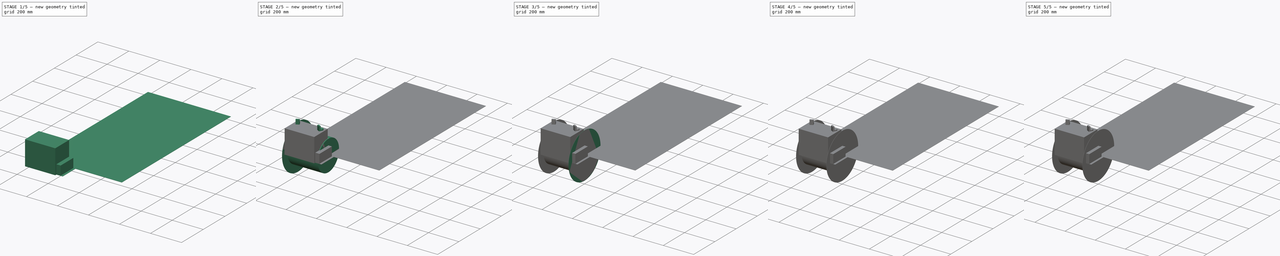
[diagram: build sequence overview — one tinted view per stage of 5, left to right]
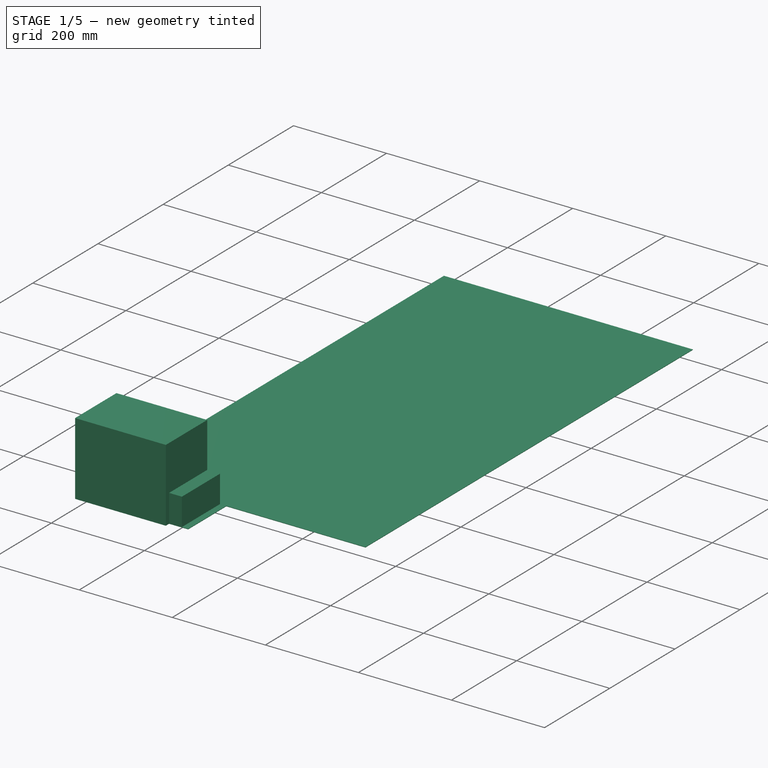
[diagram: stage 1 of 5 — iso view after this stage's code; geometry added in this stage tinted green]
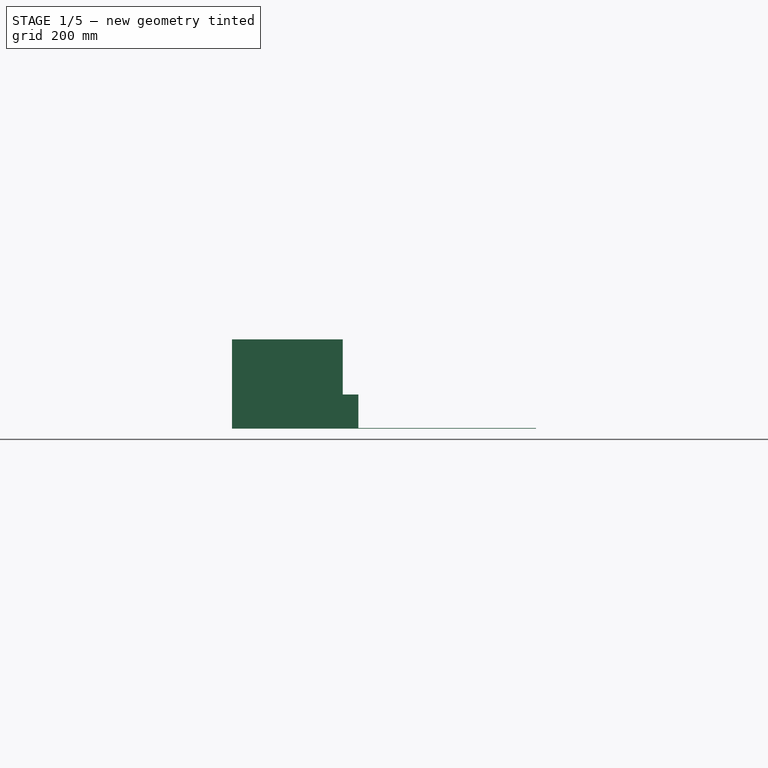
[diagram: stage 1 of 5 — front view after this stage's code; geometry added in this stage tinted green]
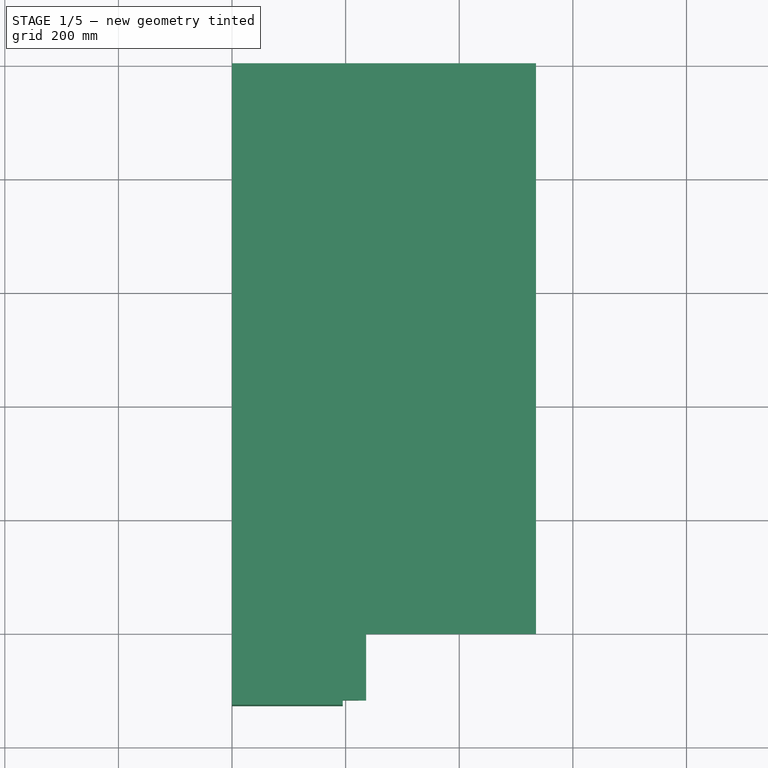
[diagram: stage 1 of 5 — top view after this stage's code; geometry added in this stage tinted green]
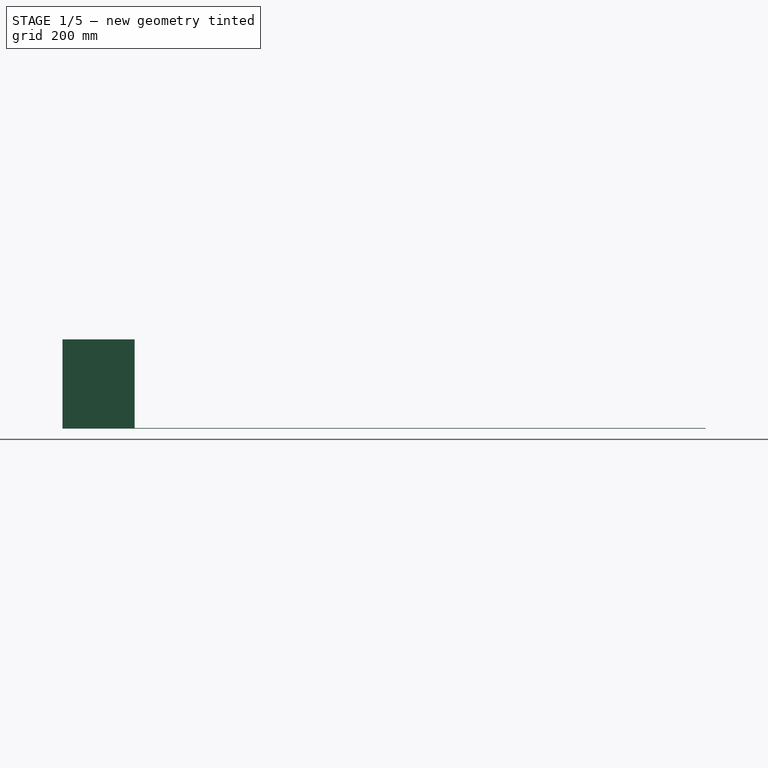
[diagram: stage 1 of 5 — right view after this stage's code; geometry added in this stage tinted green]
FCSTD DOCUMENT  (FreeCAD 0.19R20943 (Git))
Label: WinchCad
License: All rights reserved
LicenseURL: http://en.wikipedia.org/wiki/All_rights_reserved
objects: Sketcher::SketchObject×20, PartDesign::Pad×16, PartDesign::Body×9, Part::Feature×5, PartDesign::Mirrored×2, Image::ImagePlane×1, PartDesign::Pocket×1, Part::FeaturePython×1
note: 71 computed .brp shape members not serialized (recipe doc carries the construction recipe); baked Part::Feature solids carry a one-line shape summary decoded from their .brp

FEATURE [PartDesign::Body] Body004  label="Rouleau2"
  Group = -> [Sketch012,Pad009,Sketch013,Pad011,Sketch014,Pad010]
  Origin = -> Origin004
  Placement = pos=(219,-225,160) rot=(0,0,1;0rad)
  Tip = -> Pad010
FEATURE [Sketcher::SketchObject] Sketch016  label="base"
  MapMode = 5
  Support = -> [XY_Plane005]
  sketch-geometry (4):
    g0: LineSegment StartX=0 StartY=0 StartZ=0 EndX=195 EndY=0 EndZ=0
    g1: LineSegment StartX=195 StartY=0 StartZ=0 EndX=195 EndY=-127 EndZ=0
    g2: LineSegment StartX=195 StartY=-127 StartZ=0 EndX=0 EndY=-127 EndZ=0
    g3: LineSegment StartX=0 StartY=-127 StartZ=0 EndX=0 EndY=0 EndZ=0
  constraints (11):
    c: Coincident(g0,g1)
    c: Coincident(g1,g2)
    c: Coincident(g2,g3)
    c: Coincident(g3,g0)
    c: Horizontal(g0)
    c: Horizontal(g2)
    c: Vertical(g1)
    c: Vertical(g3)
    c: Coincident(g0,g-1)
    c: DistanceX(g0,g0) = 195
    c: DistanceY(g3,g3) = 127
FEATURE [PartDesign::Pad] Pad012
  AllowMultiFace = false
  Length = 157
  Length2 = 100
  Profile = -> Sketch016
  Type = 0
FEATURE [PartDesign::Body] Body005  label="Battery003"
  Group = -> [Sketch016,Pad012,Sketch017,Pad013,Sketch018,Pad014]
  Origin = -> Origin005
  Placement = pos=(0,485,0) rot=(0,0,1;0rad)
  Tip = -> Pad014
FEATURE [Part::Feature] Body005001  label="Battery011"
  Placement = pos=(225,214,0) rot=(0,0,1;0rad)
  shape: bbox 195 x 127 x 186.5 mm, 26 faces (baked)
FEATURE [Part::Feature] Body005002  label="Battery002"
  Placement = pos=(0,350,0) rot=(0,0,1;0rad)
  shape: bbox 195 x 127 x 186.5 mm, 26 faces (baked)
FEATURE [Part::Feature] Body005003  label="Battery001"
  Placement = pos=(0,215,0) rot=(0,0,1;0rad)
  shape: bbox 195 x 127 x 186.5 mm, 26 faces (baked)
FEATURE [Part::Feature] Body005004  label="Battery012"
  Placement = pos=(225,350,0) rot=(0,0,1;0rad)
  shape: bbox 195 x 127 x 186.5 mm, 26 faces (baked)
FEATURE [Part::Feature] Body005005  label="Battery013"
  Placement = pos=(225,485,0) rot=(0,0,1;0rad)
  shape: bbox 195 x 127 x 186.5 mm, 26 faces (baked)
FEATURE [Sketcher::SketchObject] Sketch019
  MapMode = 5
  Support = -> [XY_Plane006]
  sketch-geometry (4):
    g0: LineSegment StartX=0 StartY=0 StartZ=0 EndX=535 EndY=0 EndZ=0
    g1: LineSegment StartX=535 StartY=0 StartZ=0 EndX=535 EndY=1005 EndZ=0
    g2: LineSegment StartX=535 StartY=1005 StartZ=0 EndX=0 EndY=1005 EndZ=0
    g3: LineSegment StartX=0 StartY=1005 StartZ=0 EndX=0 EndY=0 EndZ=0
  constraints (11):
    c: Coincident(g0,g1)
    c: Coincident(g1,g2)
    c: Coincident(g2,g3)
    c: Coincident(g3,g0)
    c: Horizontal(g0)
    c: Horizontal(g2)
    c: Vertical(g1)
    c: Vertical(g3)
    c: Coincident(g0,g-1)
    c: DistanceY(g3,g3) = 1005
    c: DistanceX(g0,g0) = 535
FEATURE [PartDesign::Pad] Pad015
  AllowMultiFace = false
  Length = 1
  Length2 = 100
  Profile = -> Sketch019
  Type = 0
FEATURE [Sketcher::SketchObject] Sketch020
  MapMode = 5
  Support = -> [XY_Plane006]
FEATURE [PartDesign::Body] Body005006  label="Chassi"
  Group = -> [Sketch019,Pad015,Sketch020]
  Origin = -> Origin006
  Placement = pos=(-60,-445,-1) rot=(0,0,1;0rad)
  Tip = -> Pad015
FEATURE [Sketcher::SketchObject] Sketch021  label="Support"
  MapMode = 5
  Support = -> [XY_Plane007]
  sketch-geometry (4):
    g0: LineSegment StartX=0 StartY=0 StartZ=0 EndX=236 EndY=0 EndZ=0
    g1: LineSegment StartX=236 StartY=0 StartZ=0 EndX=236 EndY=-117 EndZ=0
    g2: LineSegment StartX=236 StartY=-117 StartZ=0 EndX=0 EndY=-117 EndZ=0
    g3: LineSegment StartX=0 StartY=-117 StartZ=0 EndX=0 EndY=0 EndZ=0
  constraints (11):
    c: Coincident(g0,g1)
    c: Coincident(g1,g2)
    c: Coincident(g2,g3)
    c: Coincident(g3,g0)
    c: Horizontal(g0)
    c: Horizontal(g2)
    c: Vertical(g1)
    c: Vertical(g3)
    c: Coincident(g0,g-1)
    c: DistanceX(g0,g0) = 236
    c: DistanceY(g3,g3) = 117
FEATURE [PartDesign::Pad] Pad016
  AllowMultiFace = false
  Length = 1
  Length2 = 100
  Profile = -> Sketch021
  Type = 0
FEATURE [Sketcher::SketchObject] Sketch022
  ExternalGeometry = -> [Pad016]
  MapMode = 5
  Placement = pos=(0,0,1) rot=(0,0,1;0rad)
  Support = -> [Pad016]
  sketch-geometry (4):
    g0: LineSegment StartX=13.5 StartY=0 StartZ=0 EndX=222.5 EndY=0 EndZ=0
    g1: LineSegment StartX=222.5 StartY=0 StartZ=0 EndX=222.5 EndY=-117 EndZ=0
    g2: LineSegment StartX=222.5 StartY=-117 StartZ=0 EndX=13.5 EndY=-117 EndZ=0
    g3: LineSegment StartX=13.5 StartY=-117 StartZ=0 EndX=13.5 EndY=0 EndZ=0
  constraints (12):
    c: Coincident(g0,g1)
    c: Coincident(g1,g2)
    c: Coincident(g2,g3)
    c: Coincident(g3,g0)
    c: Horizontal(g0)
    c: Horizontal(g2)
    c: Vertical(g1)
    c: Vertical(g3)
    c: PointOnObject(g0,g-3)
    c: PointOnObject(g1,g-4)
    c: DistanceX(g-1,g0) = 13.5
    c: DistanceX(g0,g0) = 209
FEATURE [PartDesign::Pad] Pad017
  AllowMultiFace = false
  BaseFeature = -> Pad016
  Length = 59
  Length2 = 100
  Profile = -> Sketch022
  Type = 0
FEATURE [PartDesign::Body] Body005007  label="Controler"
  Group = -> [Sketch021,Pad016,Sketch022,Pad017]
  Origin = -> Origin007
  Placement = pos=(198,55,0) rot=(0,0,1;0rad)
  Tip = -> Pad017
FEATURE [Sketcher::SketchObject] Sketch023
  MapMode = 5
  Placement = pos=(0,0,0) rot=(0.57735,0.57735,0.57735;2.0944rad)
  Support = -> [YZ_Plane008]
  sketch-geometry (8):
    g0: LineSegment StartX=-149.434 StartY=-160 StartZ=0 EndX=-73.5097 EndY=-28.4945 EndZ=0
    g1: LineSegment StartX=73.5097 StartY=-28.4945 StartZ=0 EndX=149.434 EndY=-160 EndZ=0
    g2: LineSegment StartX=-149.434 StartY=-160 StartZ=0 EndX=-106.191 EndY=-160 EndZ=0
    g3: LineSegment StartX=-106.191 StartY=-160 StartZ=0 EndX=-44.7002 EndY=-53.4945 EndZ=0
    g4: LineSegment StartX=-44.7002 StartY=-53.4945 StartZ=0 EndX=44.7002 EndY=-53.4945 EndZ=0
    g5: LineSegment StartX=44.7002 StartY=-53.4945 StartZ=0 EndX=106.191 EndY=-160 EndZ=0
    g6: LineSegment StartX=106.191 StartY=-160 StartZ=0 EndX=149.434 EndY=-160 EndZ=0
    g7: LineSegment StartX=-73.5097 StartY=-28.4945 StartZ=0 EndX=73.5097 EndY=-28.4945 EndZ=0
  constraints (18):
    c: Coincident(g2,g0)
    c: Horizontal(g2)
    c: Coincident(g3,g2)
    c: Coincident(g4,g3)
    c: Coincident(g5,g4)
    c: Coincident(g6,g1)
    c: Horizontal(g6)
    c: DistanceY(g4,g1) = 25
    c: Parallel(g0,g3)
    c: Parallel(g5,g1)
    c: Coincident(g5,g6)
    c: Symmetric(g2,g5,g-2)
    c: DistanceY(g2,g-1) = 160
    c: Coincident(g7,g0)
    c: Coincident(g7,g1)
    c: Symmetric(g0,g1,g-2)
    c: Symmetric(g3,g4,g-2)
    c: Angle(g3,g4) = 2.0944
FEATURE [PartDesign::Body] Body005008
  Group = -> [Sketch023]
  Origin = -> Origin008
  Placement = pos=(0,-225,160) rot=(0,0,1;0rad)
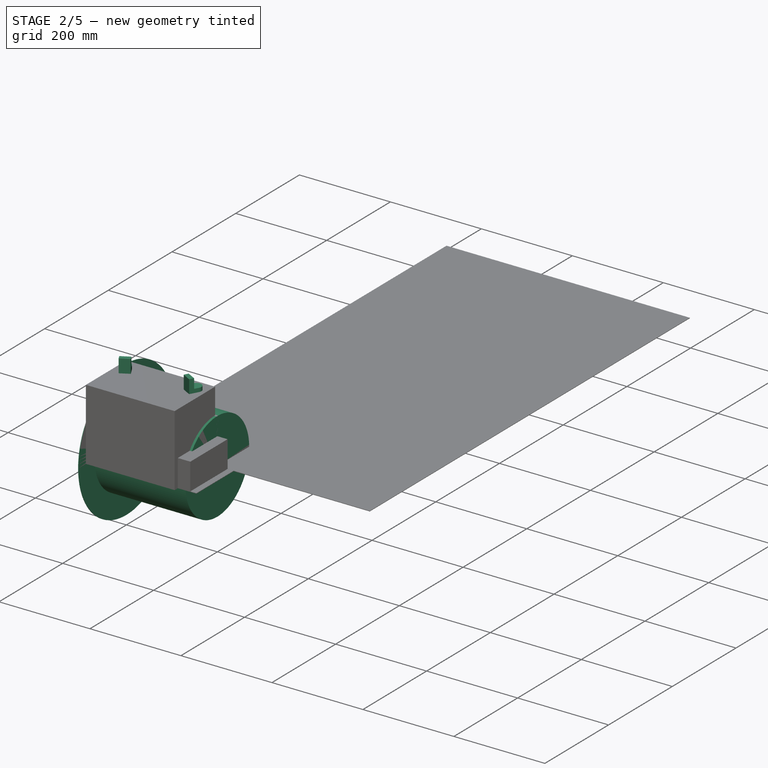
[diagram: stage 2 of 5 — iso view after this stage's code; geometry added in this stage tinted green]
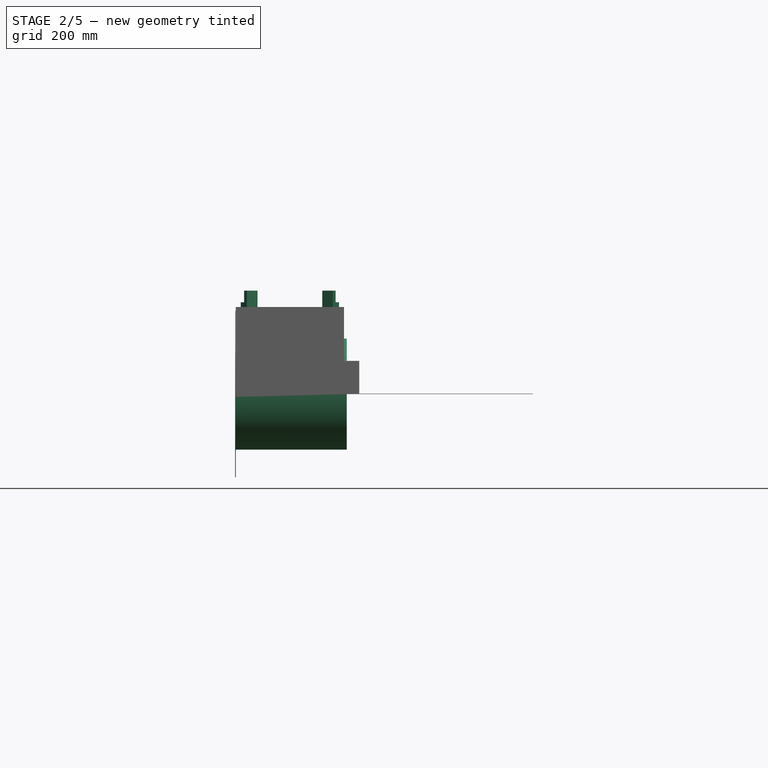
[diagram: stage 2 of 5 — front view after this stage's code; geometry added in this stage tinted green]
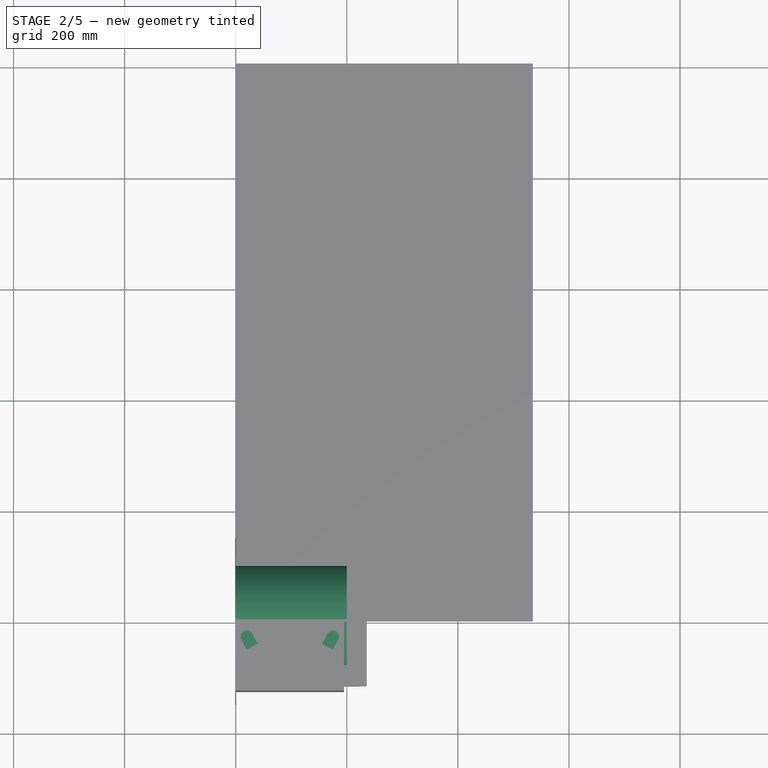
[diagram: stage 2 of 5 — top view after this stage's code; geometry added in this stage tinted green]
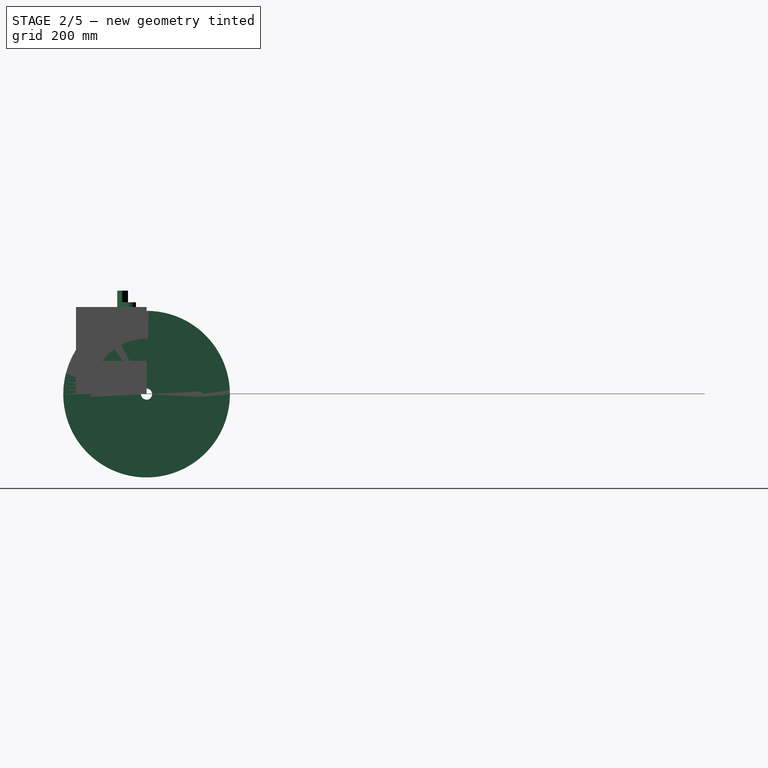
[diagram: stage 2 of 5 — right view after this stage's code; geometry added in this stage tinted green]
FEATURE [PartDesign::Body] Body002  label="Rouleau1"
  Group = -> [Sketch005,Pad003,Sketch010,Pad007,Sketch011,Pad008]
  Origin = -> Origin002
  Placement = pos=(0,-225,160) rot=(0,0,1;0rad)
  Tip = -> Pad008
FEATURE [Sketcher::SketchObject] Sketch012
  MapMode = 5
  Placement = pos=(0,0,0) rot=(0.57735,0.57735,0.57735;2.0944rad)
  Support = -> [YZ_Plane004]
  sketch-geometry (2):
    g0: Circle CenterX=0 CenterY=0 CenterZ=0 NormalX=0 NormalY=0 NormalZ=1 AngleXU=0 Radius=100
    g1: Circle CenterX=0 CenterY=0 CenterZ=0 NormalX=0 NormalY=0 NormalZ=1 AngleXU=0 Radius=10
  constraints (4):
    c: Coincident(g0,g-1)
    c: Radius(g0) = 100
    c: Coincident(g1,g0)
    c: Radius(g1) = 10
FEATURE [PartDesign::Pad] Pad009
  AllowMultiFace = false
  Length = 200
  Length2 = 100
  Offset = 100
  Placement = pos=(0,0,0) rot=(0.57735,0.57735,0.57735;2.0944rad)
  Profile = -> Sketch012
  Type = 0
FEATURE [Sketcher::SketchObject] Sketch013
  ExternalGeometry = -> [Pad009]
  MapMode = 5
  Placement = pos=(0,0,0) rot=(0.57735,0.57735,-0.57735;4.18879rad)
  Support = -> [Pad009]
  sketch-geometry (2):
    g0: Circle CenterX=0 CenterY=0 CenterZ=0 NormalX=0 NormalY=0 NormalZ=1 AngleXU=0 Radius=10
    g1: Circle CenterX=0 CenterY=0 CenterZ=0 NormalX=0 NormalY=0 NormalZ=1 AngleXU=0 Radius=150
  constraints (4):
    c: Coincident(g0,g-1)
    c: Tangent(g0,g-3)
    c: Coincident(g1,g0)
    c: Radius(g1) = 150
FEATURE [PartDesign::Pad] Pad011
  AllowMultiFace = false
  BaseFeature = -> Pad009
  Length = 1
  Length2 = 100
  Placement = pos=(0,0,0) rot=(0.57735,0.57735,0.57735;2.0944rad)
  Profile = -> Sketch013
  Type = 0
FEATURE [Sketcher::SketchObject] Sketch017
  ExternalGeometry = -> [Pad012]
  MapMode = 5
  Placement = pos=(0,0,157) rot=(0,0,1;0rad)
  Support = -> [Pad012]
  sketch-geometry (8):
    g0: ArcOfCircle CenterX=20 CenterY=-30 CenterZ=0 NormalX=0 NormalY=0 NormalZ=1 AngleXU=0 Radius=11 StartAngle=0.502843 EndAngle=3.64444
    g1: LineSegment StartX=10.3616 StartY=-35.3011 StartZ=0 EndX=20 EndY=-52.8254 EndZ=0
    g2: LineSegment StartX=20 StartY=-52.8254 StartZ=0 EndX=39.2767 EndY=-42.2232 EndZ=0
    g3: LineSegment StartX=39.2767 StartY=-42.2232 StartZ=0 EndX=29.6384 EndY=-24.6989 EndZ=0
    g4: LineSegment StartX=175 StartY=-52.8254 StartZ=0 EndX=184.638 EndY=-35.3011 EndZ=0
    g5: LineSegment StartX=165.362 StartY=-24.6989 StartZ=0 EndX=155.723 EndY=-42.2232 EndZ=0
    g6: ArcOfCircle CenterX=175 CenterY=-30 CenterZ=0 NormalX=0 NormalY=0 NormalZ=1 AngleXU=0 Radius=11 StartAngle=5.78034 EndAngle=8.92193
    g7: LineSegment StartX=155.723 StartY=-42.2232 StartZ=0 EndX=175 EndY=-52.8254 EndZ=0
  constraints (26):
    c: Coincident(g1,g0)
    c: Coincident(g2,g1)
    c: Coincident(g3,g2)
    c: Coincident(g3,g0)
    c: DistanceX(g-1,g0) = 20
    c: DistanceY(g0,g-1) = 30
    c: Perpendicular(g2,g1)
    c: Perpendicular(g2,g3)
    c: Distance(g3) = 20
    c: Distance(g1) = 20
    c: Distance(g2) = 22
    c: Symmetric(g0,g0,g0)
    c: DistanceX(g-1,g1) = 20
    c: Coincident(g5,g6)
    c: Coincident(g7,g5)
    c: Coincident(g4,g7)
    c: Coincident(g4,g6)
    c: Perpendicular(g7,g5)
    c: Perpendicular(g7,g4)
    c: Distance(g4) = 20
    c: Distance(g5) = 20
    c: Distance(g7) = 22
    c: Symmetric(g6,g6,g6)
    c: DistanceX(g6,g-4) = 20
    c: DistanceY(g6,g-4) = 30
    c: DistanceX(g4,g-4) = 20
FEATURE [PartDesign::Pad] Pad013
  AllowMultiFace = false
  BaseFeature = -> Pad012
  Length = 8.5
  Length2 = 100
  Profile = -> Sketch017
  Type = 0
FEATURE [Sketcher::SketchObject] Sketch018
  ExternalGeometry = -> [Pad013]
  MapMode = 5
  Placement = pos=(0,0,165.5) rot=(0,0,1;0rad)
  Support = -> [Pad013]
  sketch-geometry (8):
    g0: LineSegment StartX=20 StartY=-52.8254 StartZ=0 EndX=39.2767 EndY=-42.2232 EndZ=0
    g1: LineSegment StartX=34.4576 StartY=-33.4611 StartZ=0 EndX=15.1808 EndY=-44.0633 EndZ=0
    g2: LineSegment StartX=34.4576 StartY=-33.4611 StartZ=0 EndX=39.2767 EndY=-42.2232 EndZ=0
    g3: LineSegment StartX=15.1808 StartY=-44.0633 StartZ=0 EndX=20 EndY=-52.8254 EndZ=0
    g4: LineSegment StartX=155.723 StartY=-42.2232 StartZ=0 EndX=175 EndY=-52.8254 EndZ=0
    g5: LineSegment StartX=175 StartY=-52.8254 StartZ=0 EndX=179.819 EndY=-44.0633 EndZ=0
    g6: LineSegment StartX=179.819 StartY=-44.0633 StartZ=0 EndX=160.542 EndY=-33.4611 EndZ=0
    g7: LineSegment StartX=160.542 StartY=-33.4611 StartZ=0 EndX=155.723 EndY=-42.2232 EndZ=0
  constraints (20):
    c: Coincident(g0,g-3)
    c: Coincident(g0,g-3)
    c: Coincident(g2,g1)
    c: Coincident(g2,g0)
    c: Coincident(g3,g1)
    c: Coincident(g3,g0)
    c: Perpendicular(g0,g2)
    c: Perpendicular(g0,g3)
    c: Perpendicular(g1,g3)
    c: Distance(g2) = 10
    c: Coincident(g4,g-4)
    c: Coincident(g4,g-4)
    c: Coincident(g5,g4)
    c: Coincident(g7,g4)
    c: Perpendicular(g4,g7)
    c: Perpendicular(g5,g4)
    c: Perpendicular(g5,g6)
    c: Coincident(g6,g7)
    c: Coincident(g5,g6)
    c: Horizontal(g1,g6)
FEATURE [PartDesign::Pad] Pad014
  AllowMultiFace = false
  BaseFeature = -> Pad013
  Length = 21
  Length2 = 100
  Profile = -> Sketch018
  Type = 0
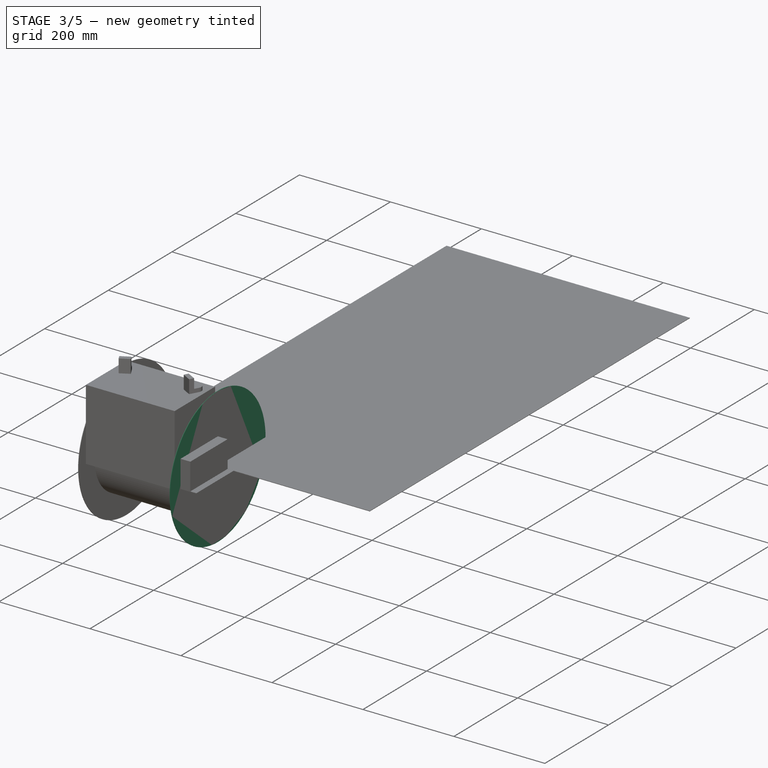
[diagram: stage 3 of 5 — iso view after this stage's code; geometry added in this stage tinted green]
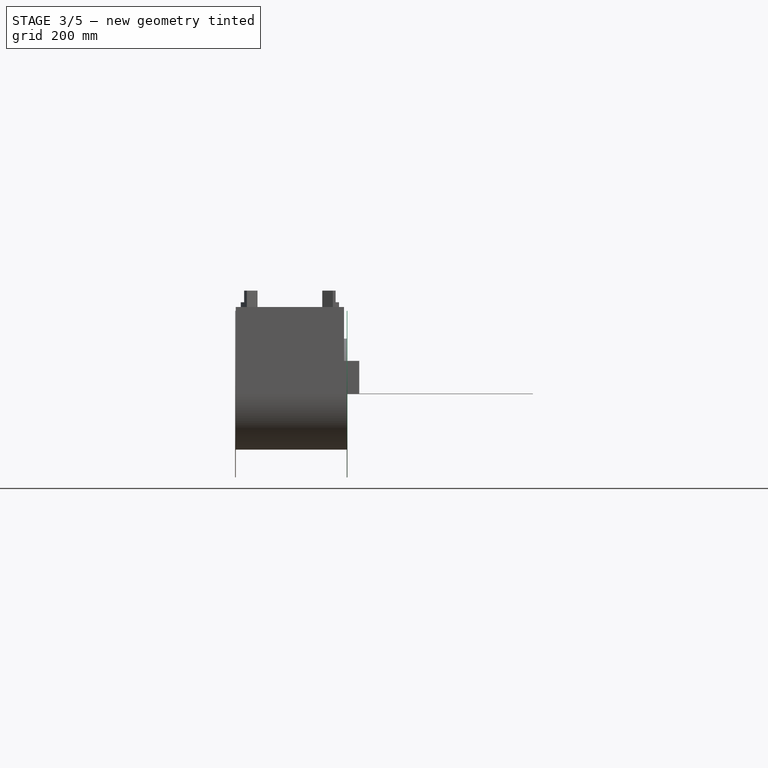
[diagram: stage 3 of 5 — front view after this stage's code; geometry added in this stage tinted green]
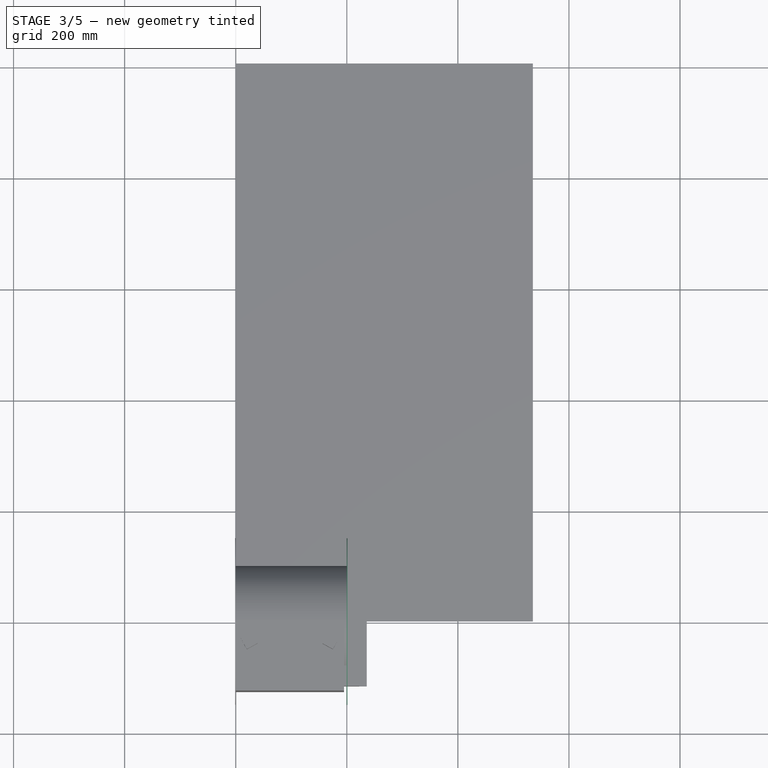
[diagram: stage 3 of 5 — top view after this stage's code; geometry added in this stage tinted green]
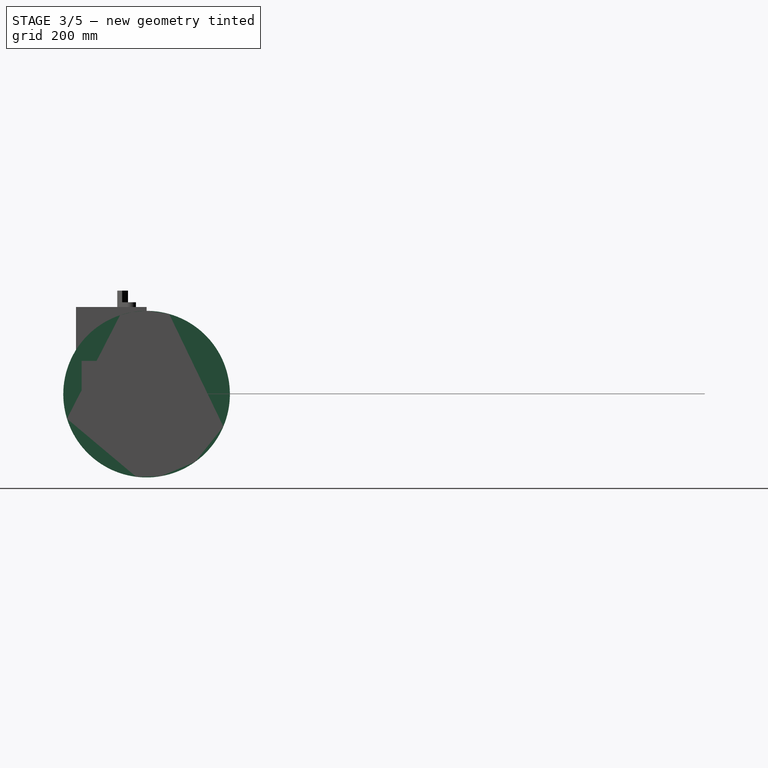
[diagram: stage 3 of 5 — right view after this stage's code; geometry added in this stage tinted green]
FEATURE [Sketcher::SketchObject] Sketch005
  MapMode = 5
  Placement = pos=(0,0,0) rot=(0.57735,0.57735,0.57735;2.0944rad)
  Support = -> [YZ_Plane002]
  sketch-geometry (2):
    g0: Circle CenterX=0 CenterY=0 CenterZ=0 NormalX=0 NormalY=0 NormalZ=1 AngleXU=0 Radius=100
    g1: Circle CenterX=0 CenterY=0 CenterZ=0 NormalX=0 NormalY=0 NormalZ=1 AngleXU=0 Radius=10
  constraints (4):
    c: Coincident(g0,g-1)
    c: Radius(g0) = 100
    c: Coincident(g1,g0)
    c: Radius(g1) = 10
FEATURE [PartDesign::Pad] Pad003
  AllowMultiFace = false
  Length = 200
  Length2 = 100
  Offset = 100
  Placement = pos=(0,0,0) rot=(0.57735,0.57735,0.57735;2.0944rad)
  Profile = -> Sketch005
  Type = 0
FEATURE [PartDesign::Body] Body003  label="Pignon"
  Group = -> [Sketch009,Pad006]
  Origin = -> Origin003
  Placement = pos=(-13,-225,160) rot=(0,0,1;0rad)
  Tip = -> Pad006
FEATURE [Sketcher::SketchObject] Sketch010
  ExternalGeometry = -> [Pad003]
  MapMode = 5
  Placement = pos=(0,0,0) rot=(0.57735,0.57735,-0.57735;4.18879rad)
  Support = -> [Pad003]
  sketch-geometry (2):
    g0: Circle CenterX=0 CenterY=0 CenterZ=0 NormalX=0 NormalY=0 NormalZ=1 AngleXU=0 Radius=10
    g1: Circle CenterX=0 CenterY=0 CenterZ=0 NormalX=0 NormalY=0 NormalZ=1 AngleXU=0 Radius=150
  constraints (4):
    c: Coincident(g0,g-1)
    c: Tangent(g0,g-3)
    c: Coincident(g1,g0)
    c: Radius(g1) = 150
FEATURE [PartDesign::Pad] Pad007
  AllowMultiFace = false
  BaseFeature = -> Pad003
  Length = 1
  Length2 = 100
  Placement = pos=(0,0,0) rot=(0.57735,0.57735,0.57735;2.0944rad)
  Profile = -> Sketch010
  Type = 0
FEATURE [Sketcher::SketchObject] Sketch011
  ExternalGeometry = -> [Pad007]
  MapMode = 5
  Placement = pos=(200,-4.4e-14,4.4e-14) rot=(0.57735,0.57735,0.57735;2.0944rad)
  Support = -> [Pad007]
  sketch-geometry (1):
    g0: Circle CenterX=0 CenterY=0 CenterZ=0 NormalX=0 NormalY=0 NormalZ=1 AngleXU=0 Radius=150
  constraints (2):
    c: Coincident(g0,g-1)
    c: Tangent(g0,g-4)
FEATURE [PartDesign::Pad] Pad008
  AllowMultiFace = false
  BaseFeature = -> Pad007
  Length = 1
  Length2 = 100
  Placement = pos=(0,0,0) rot=(0.57735,0.57735,0.57735;2.0944rad)
  Profile = -> Sketch011
  Type = 0
FEATURE [Sketcher::SketchObject] Sketch014
  ExternalGeometry = -> [Pad011]
  MapMode = 5
  Placement = pos=(200,-4.4e-14,4.4e-14) rot=(0.57735,0.57735,0.57735;2.0944rad)
  Support = -> [Pad011]
  sketch-geometry (1):
    g0: Circle CenterX=0 CenterY=0 CenterZ=0 NormalX=0 NormalY=0 NormalZ=1 AngleXU=0 Radius=150
  constraints (2):
    c: Coincident(g0,g-1)
    c: Tangent(g0,g-4)
FEATURE [PartDesign::Pad] Pad010
  AllowMultiFace = false
  BaseFeature = -> Pad011
  Length = 1
  Length2 = 100
  Placement = pos=(0,0,0) rot=(0.57735,0.57735,0.57735;2.0944rad)
  Profile = -> Sketch014
  Type = 0
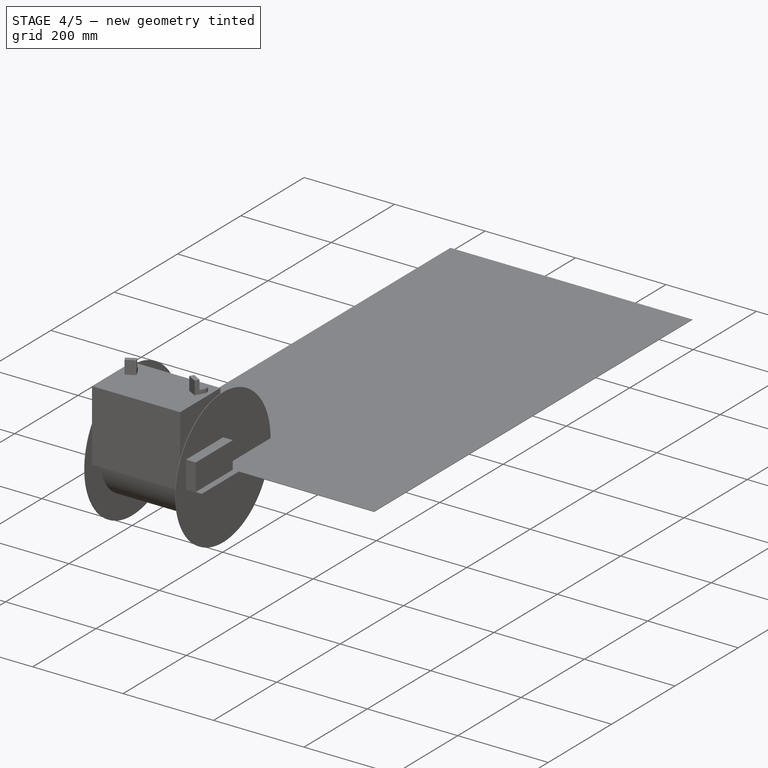
[diagram: stage 4 of 5 — iso view after this stage's code; geometry added in this stage tinted green]
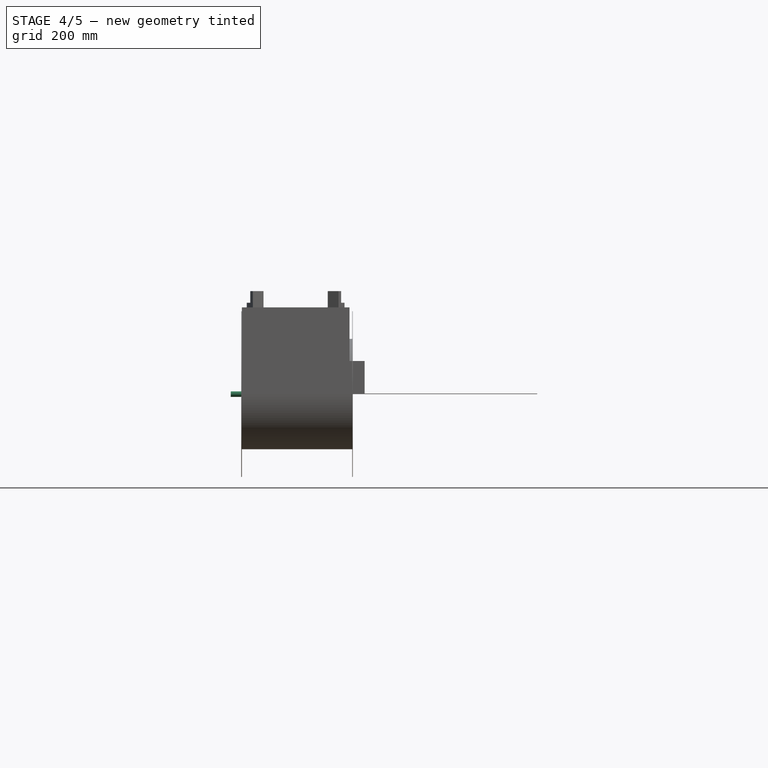
[diagram: stage 4 of 5 — front view after this stage's code; geometry added in this stage tinted green]
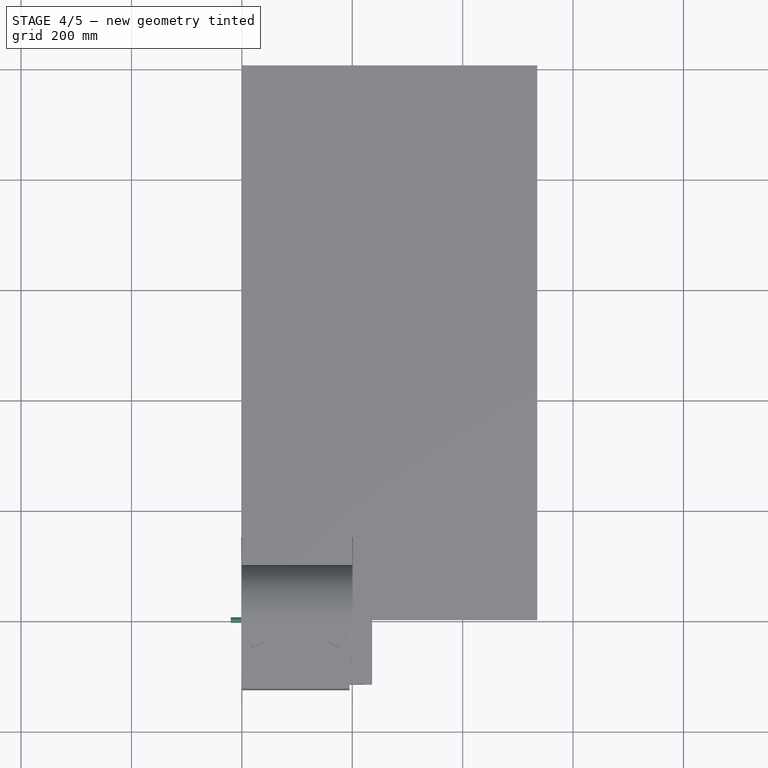
[diagram: stage 4 of 5 — top view after this stage's code; geometry added in this stage tinted green]
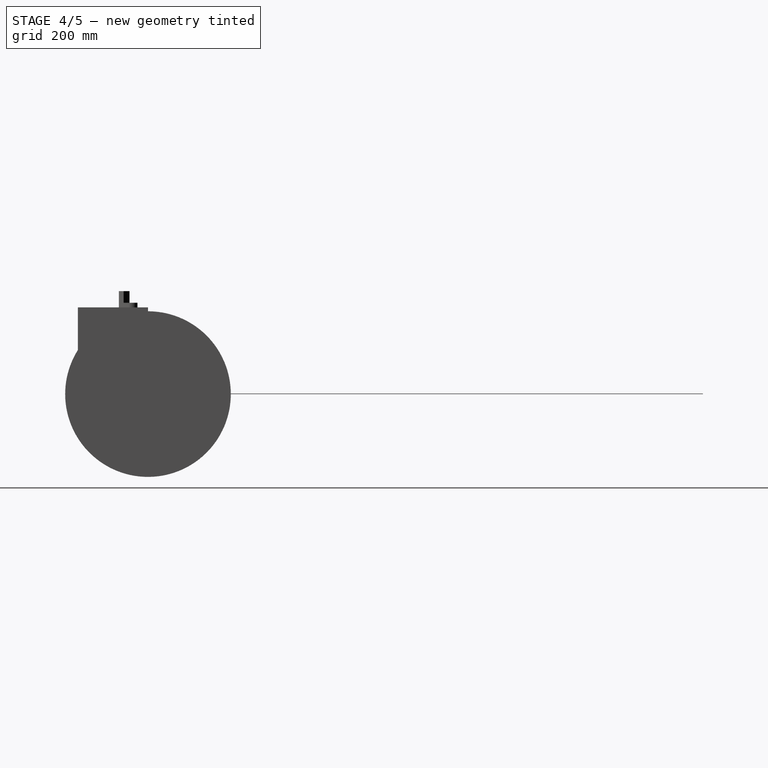
[diagram: stage 4 of 5 — right view after this stage's code; geometry added in this stage tinted green]
FEATURE [Sketcher::SketchObject] Sketch  label="BodyMotor"
  MapMode = 5
  Placement = pos=(0,0,0) rot=(0.57735,0.57735,0.57735;2.0944rad)
  Support = -> [YZ_Plane]
  sketch-geometry (1):
    g0: Circle CenterX=0 CenterY=0 CenterZ=0 NormalX=0 NormalY=0 NormalZ=1 AngleXU=0 Radius=53.5
  constraints (2):
    c: Coincident(g0,g-1)
    c: Radius(g0) = 53.5
FEATURE [PartDesign::Pad] Pad
  AllowMultiFace = false
  Length = 134
  Length2 = 100
  Placement = pos=(0,0,0) rot=(0.57735,0.57735,0.57735;2.0944rad)
  Profile = -> Sketch
  Type = 0
FEATURE [Sketcher::SketchObject] Sketch001  label="FootMotor"
  MapMode = 5
  Placement = pos=(0,0,0) rot=(0.57735,0.57735,0.57735;2.0944rad)
  Support = -> [YZ_Plane001]
  sketch-geometry (8):
    g0: ArcOfCircle CenterX=0 CenterY=0 CenterZ=0 NormalX=0 NormalY=0 NormalZ=1 AngleXU=0 Radius=53.5 StartAngle=4.19418 EndAngle=4.71239
    g1: ArcOfCircle CenterX=0 CenterY=0 CenterZ=0 NormalX=0 NormalY=0 NormalZ=1 AngleXU=0 Radius=57.5 StartAngle=4.23341 EndAngle=4.71239
    g2: LineSegment StartX=-26.5 StartY=-46.4758 StartZ=0 EndX=-37 EndY=-53 EndZ=0
    g3: LineSegment StartX=-26.5 StartY=-51.0294 StartZ=0 EndX=-37 EndY=-57 EndZ=0
    g4: LineSegment StartX=-37 StartY=-57 StartZ=0 EndX=-60 EndY=-57 EndZ=0
    g5: LineSegment StartX=-60 StartY=-57 StartZ=0 EndX=-60 EndY=-53 EndZ=0
    g6: LineSegment StartX=-60 StartY=-53 StartZ=0 EndX=-37 EndY=-53 EndZ=0
    g7: LineSegment StartX=-9.8e-15 StartY=-53.5 StartZ=0 EndX=-9.8e-15 EndY=-57.5 EndZ=0
  constraints (24):
    c: Coincident(g0,g-1)
    c: Coincident(g1,g0)
    c: Coincident(g2,g0)
    c: Coincident(g3,g1)
    c: Coincident(g4,g3)
    c: Coincident(g5,g4)
    c: Vertical(g5)
    c: Coincident(g6,g5)
    c: Horizontal(g6)
    c: Coincident(g6,g2)
    c: Horizontal(g4)
    c: DistanceY(g5,g5) = 4
    c: DistanceX(g4,g4) = 23
    c: Vertical(g2,g3)
    c: DistanceX(g4,g-1) = 60
    c: Vertical(g1,g0)
    c: DistanceY(g4,g0) = 57
    c: Distance(g0,g0) = 53.5
    c: DistanceX(g4,g1) = 33.5
    c: DistanceY(g1,g0) = 4
    c: Vertical(g1,g0)
    c: PointOnObject(g1,g-2)
    c: Coincident(g7,g0)
    c: Coincident(g7,g1)
FEATURE [Image::ImagePlane] ImagePlane  label="Capture"
  Placement = pos=(0,16,14.5) rot=(0.57735,0.57735,0.57735;2.0944rad)
  XSize = 249
  YSize = 281
FEATURE [PartDesign::Pad] Pad001  label="Foot"
  AllowMultiFace = false
  Length = 74
  Length2 = 100
  Placement = pos=(0,0,0) rot=(0.57735,0.57735,0.57735;2.0944rad)
  Profile = -> Sketch001
  Type = 0
FEATURE [PartDesign::Body] Body001  label="FootSupport"
  Group = -> [Sketch001,Pad001,Sketch002,Pocket,Mirrored,Mirrored001]
  Origin = -> Origin001
  Placement = pos=(18.5,0,0) rot=(0,0,1;0rad)
  Tip = -> Mirrored001
FEATURE [Sketcher::SketchObject] Sketch004  label="Axe"
  MapMode = 5
  Placement = pos=(0,0,0) rot=(0.57735,0.57735,-0.57735;4.18879rad)
  Support = -> [Pad]
  sketch-geometry (1):
    g0: Circle CenterX=0 CenterY=0 CenterZ=0 NormalX=0 NormalY=0 NormalZ=1 AngleXU=0 Radius=5
  constraints (2):
    c: Coincident(g0,g-1)
    c: Radius(g0) = 5
FEATURE [PartDesign::Pad] Pad002
  AllowMultiFace = false
  BaseFeature = -> Pad
  Length = 20
  Length2 = 100
  Placement = pos=(0,0,0) rot=(0.57735,0.57735,0.57735;2.0944rad)
  Profile = -> Sketch004
  Type = 0
FEATURE [Sketcher::SketchObject] Sketch009
  MapMode = 5
  Placement = pos=(0,0,0) rot=(0.57735,0.57735,0.57735;2.0944rad)
  Support = -> [YZ_Plane003]
  sketch-geometry (1):
    g0: Circle CenterX=0 CenterY=0 CenterZ=0 NormalX=0 NormalY=0 NormalZ=1 AngleXU=0 Radius=70
  constraints (2):
    c: Coincident(g0,g-1)
    c: Radius(g0) = 70
FEATURE [PartDesign::Pad] Pad006
  AllowMultiFace = false
  Length = 3
  Length2 = 100
  Placement = pos=(0,0,0) rot=(0.57735,0.57735,0.57735;2.0944rad)
  Profile = -> Sketch009
  Type = 0
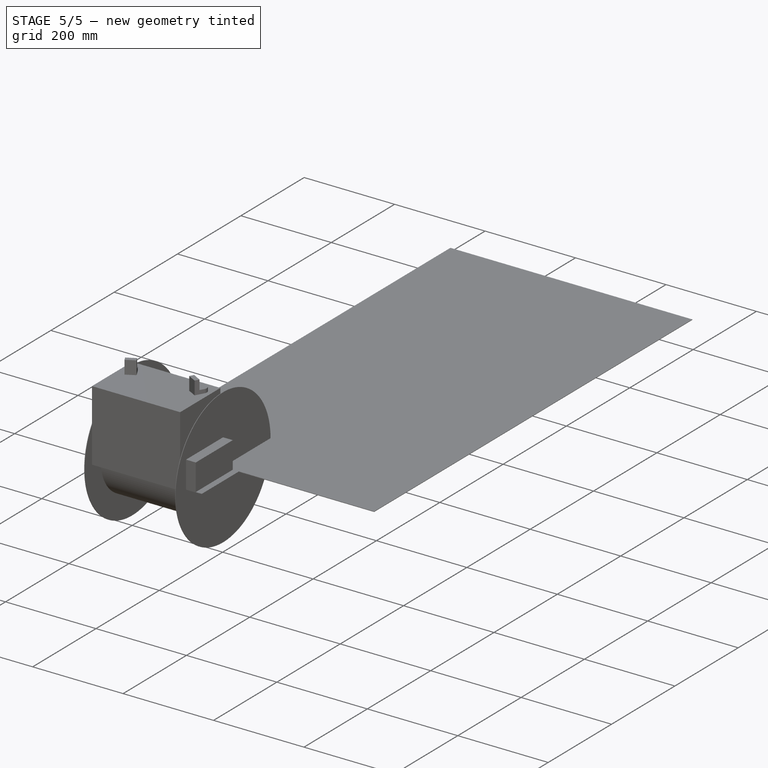
[diagram: stage 5 of 5 — iso view after this stage's code; geometry added in this stage tinted green]
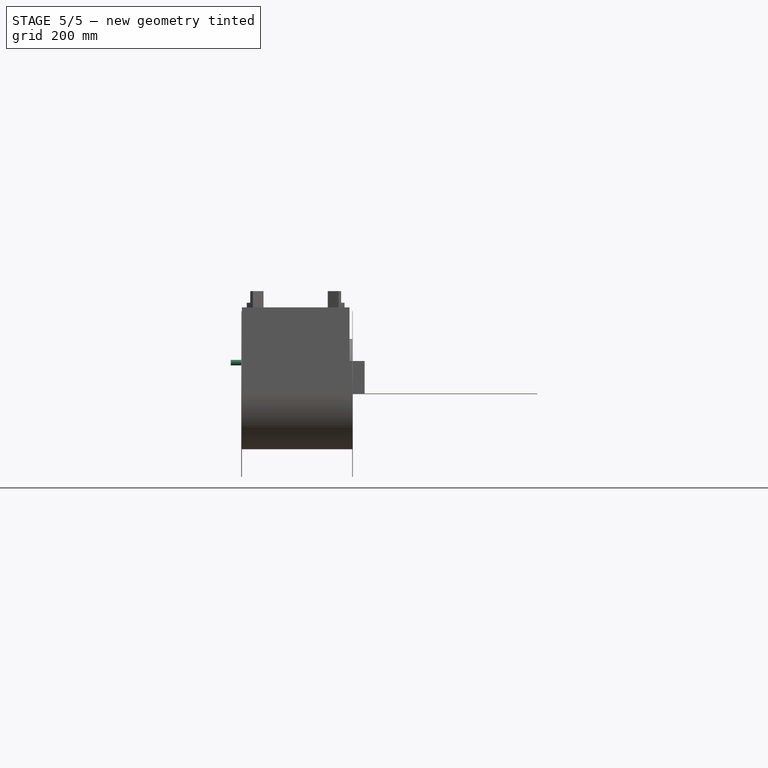
[diagram: stage 5 of 5 — front view after this stage's code; geometry added in this stage tinted green]
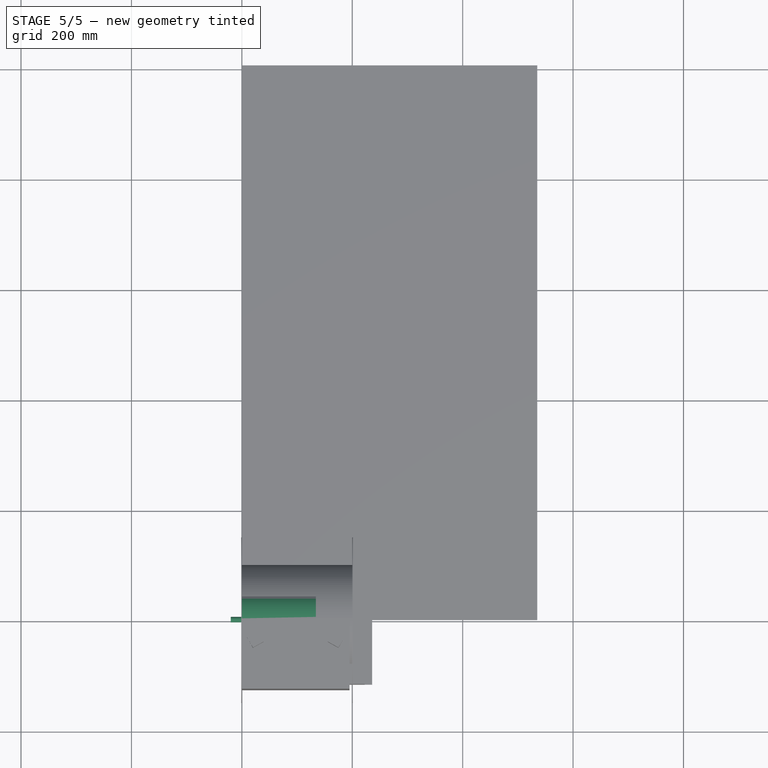
[diagram: stage 5 of 5 — top view after this stage's code; geometry added in this stage tinted green]
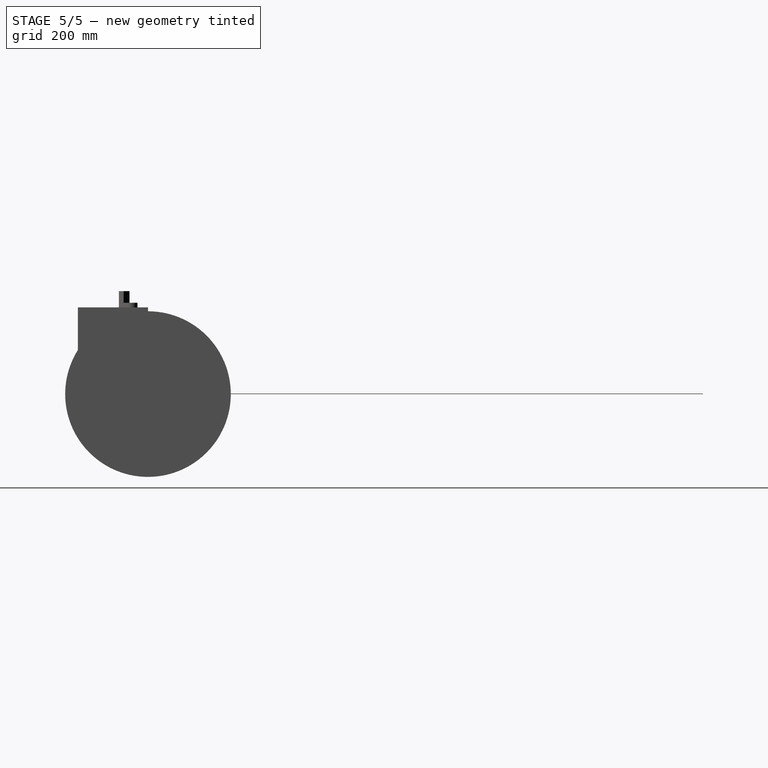
[diagram: stage 5 of 5 — right view after this stage's code; geometry added in this stage tinted green]
FEATURE [Sketcher::SketchObject] Sketch002  label="HoleFixation"
  MapMode = 5
  Placement = pos=(1.48e-14,-2.33e-14,-53) rot=(0,0,-1;1.5708rad)
  Support = -> [Pad001]
  sketch-geometry (2):
    g0: Circle CenterX=51 CenterY=66 CenterZ=0 NormalX=0 NormalY=0 NormalZ=1 AngleXU=0 Radius=4.5
    g1: Circle CenterX=51 CenterY=10 CenterZ=0 NormalX=0 NormalY=0 NormalZ=1 AngleXU=0 Radius=4.5
  constraints (6):
    c: Radius(g0) = 4.5
    c: Radius(g1) = 4.5
    c: DistanceY(g1,g0) = 56
    c: Vertical(g0,g1)
    c: DistanceX(g-1,g1) = 51
    c: DistanceY(g-1,g1) = 10
FEATURE [Sketcher::SketchObject] Sketch003  label="Hole001"
  MapMode = 5
  Placement = pos=(0,0,0) rot=(0.57735,0.57735,-0.57735;4.18879rad)
  Support = -> [Pad]
  sketch-geometry (1):
    g0: Circle CenterX=0 CenterY=-47.9602 CenterZ=0 NormalX=0 NormalY=0 NormalZ=1 AngleXU=0 Radius=2
  constraints (2):
    c: PointOnObject(g0,g-2)
    c: Radius(g0) = 2
FEATURE [PartDesign::Pocket] Pocket  label="Hole"
  AllowMultiFace = false
  BaseFeature = -> Pad001
  Length = 5
  Length2 = 100
  Placement = pos=(0,0,0) rot=(0.57735,0.57735,0.57735;2.0944rad)
  Profile = -> Sketch002
  Type = 0
FEATURE [PartDesign::Mirrored] Mirrored  label="MirrorFoot"
  BaseFeature = -> Pocket
  MirrorPlane = -> Sketch001 [V_Axis]
  Originals = -> [Pad001]
  Placement = pos=(0,0,0) rot=(0.57735,0.57735,0.57735;2.0944rad)
FEATURE [PartDesign::Mirrored] Mirrored001  label="MirrorHole"
  BaseFeature = -> Mirrored
  MirrorPlane = -> Sketch002 [V_Axis]
  Originals = -> [Pocket]
  Placement = pos=(0,0,0) rot=(0.57735,0.57735,0.57735;2.0944rad)
FEATURE [PartDesign::Body] Body  label="MotorBody"
  Group = -> [Sketch,Pad,Sketch003,Sketch004,Pad002]
  Origin = -> Origin
  Tip = -> Pad002
FEATURE [Part::FeaturePython] Connect  label="Motor"  # WARN: FeaturePython — macro-defined, semantics opaque (R4)
  Objects = -> [Body001,Body]
  Placement = pos=(0,0,57) rot=(0,0,1;0rad)
  Tolerance = 0
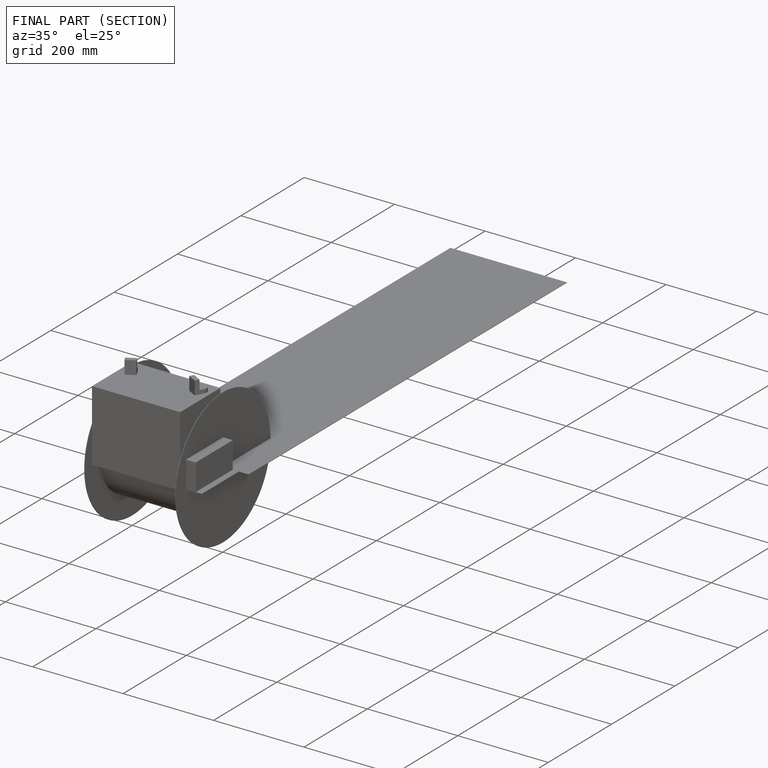
[diagram: finished part — half-section view (interior)]
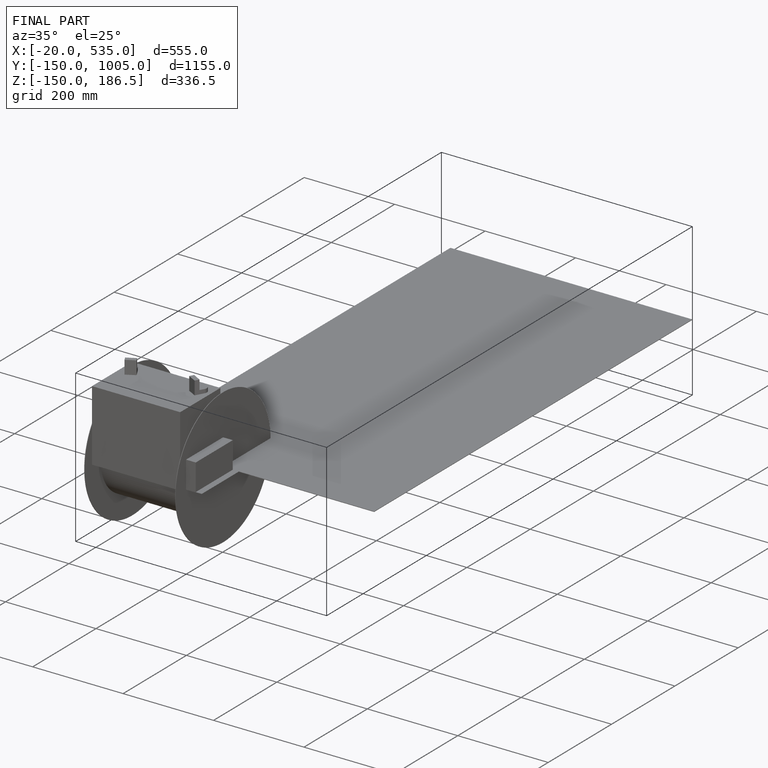
[diagram: finished part — iso view with bounding-box wireframe]
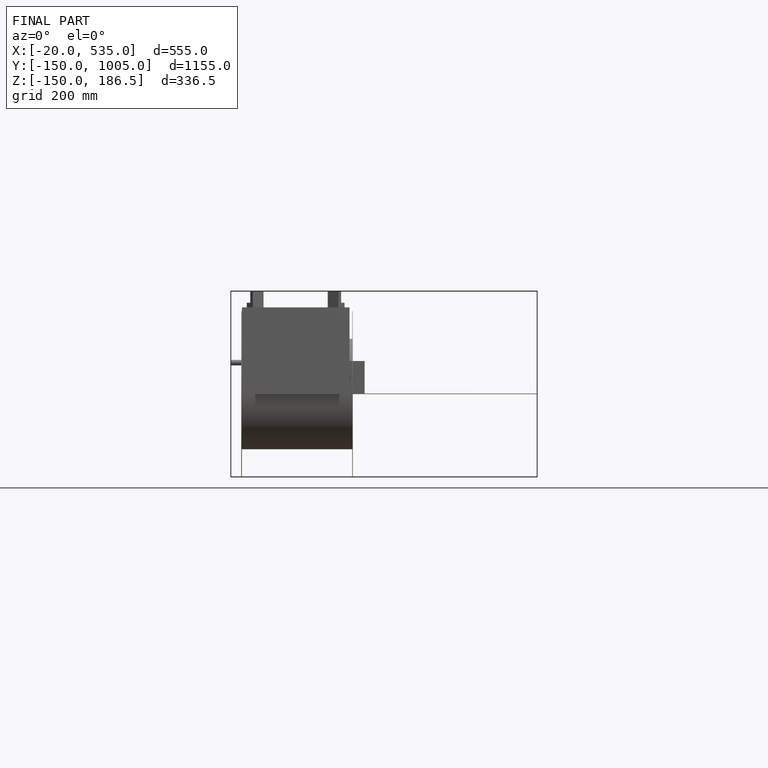
[diagram: finished part — front view with bounding-box wireframe]
